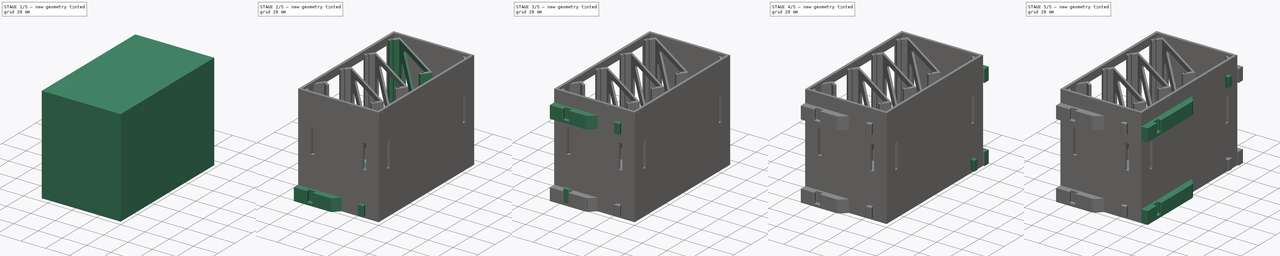
[diagram: build sequence overview — one tinted view per stage of 5, left to right]
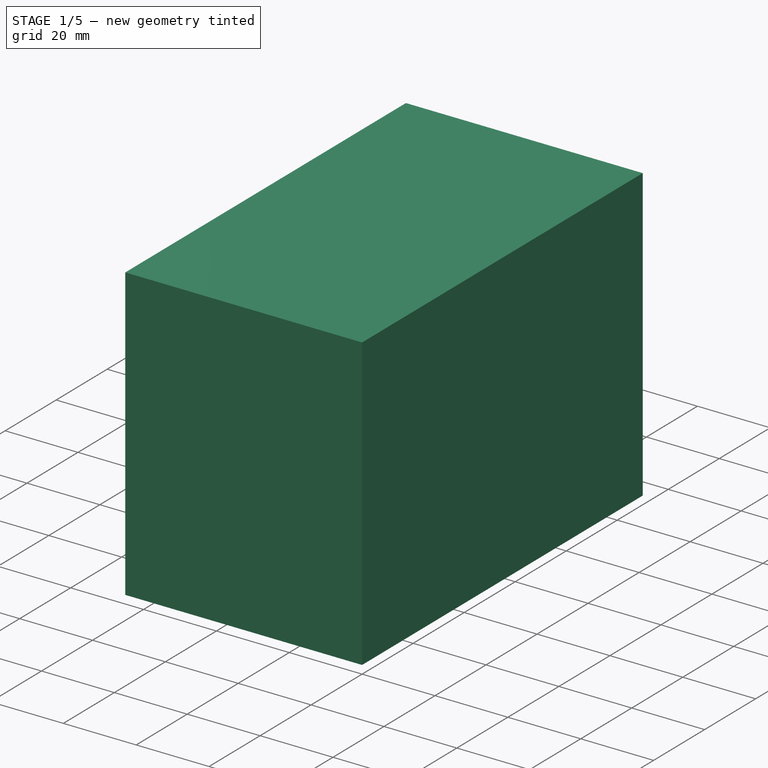
[diagram: stage 1 of 5 — iso view after this stage's code; geometry added in this stage tinted green]
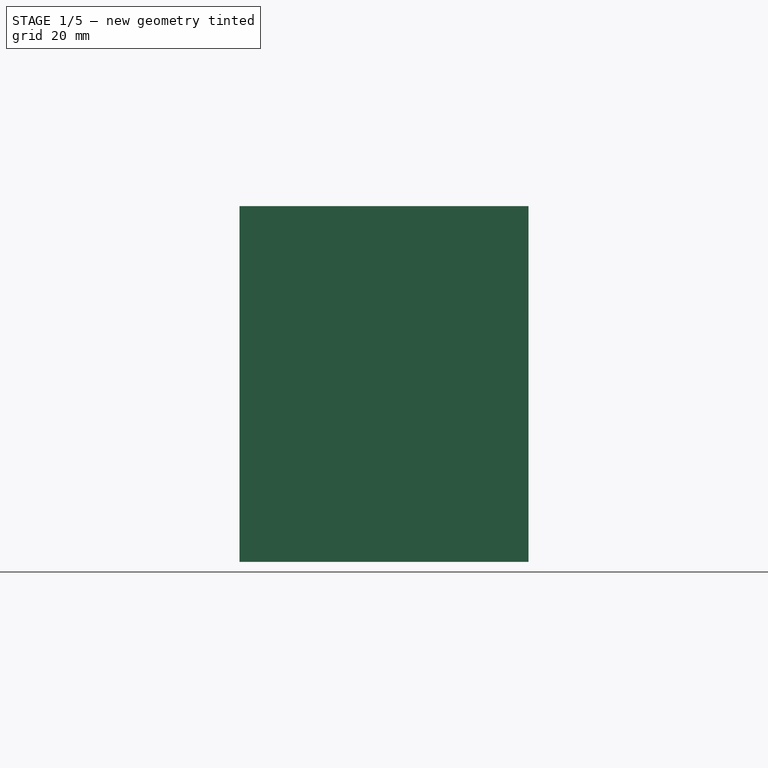
[diagram: stage 1 of 5 — front view after this stage's code; geometry added in this stage tinted green]
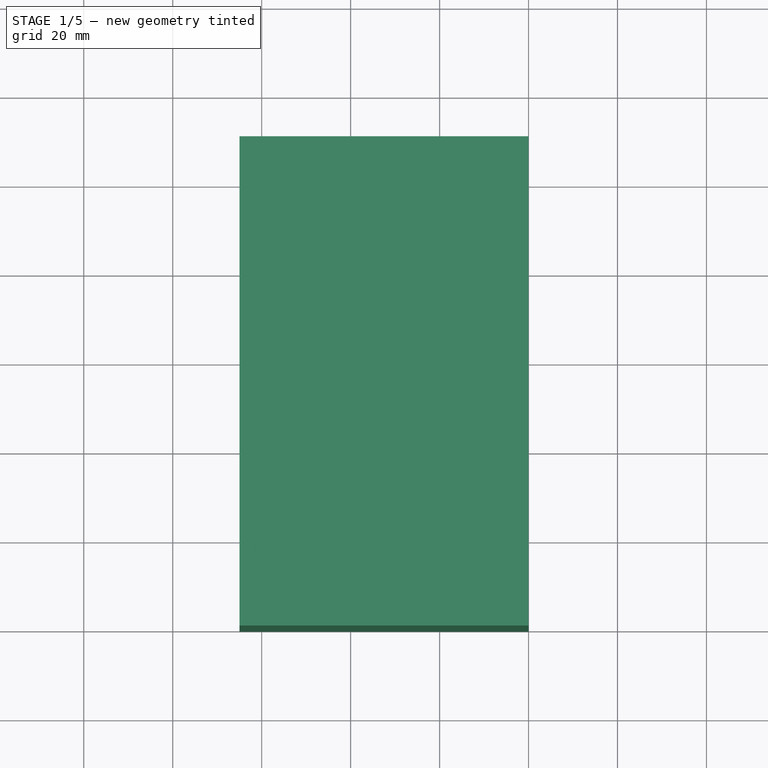
[diagram: stage 1 of 5 — top view after this stage's code; geometry added in this stage tinted green]
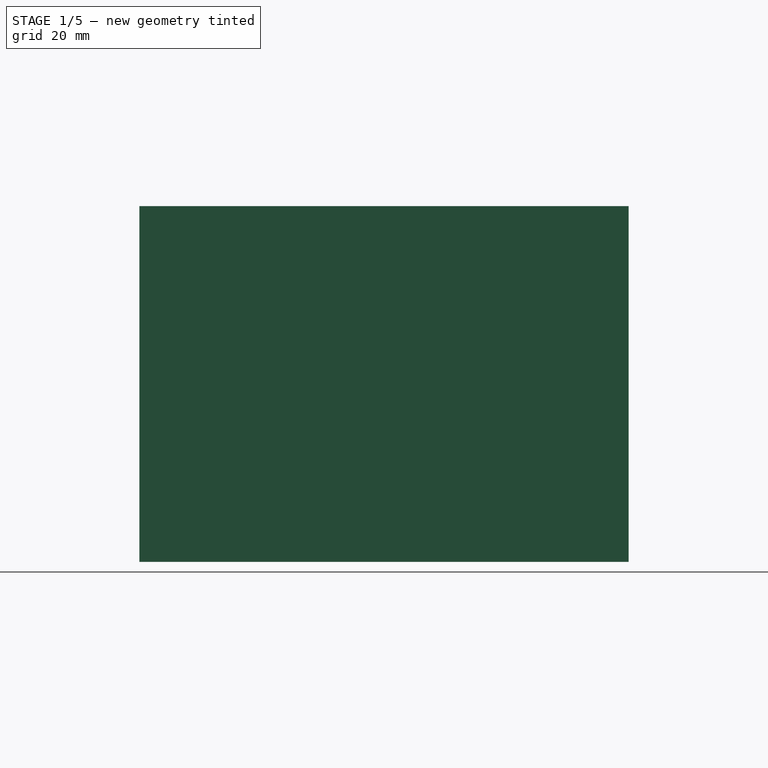
[diagram: stage 1 of 5 — right view after this stage's code; geometry added in this stage tinted green]
FCSTD DOCUMENT  (FreeCAD 0.15R4671 (Git))
Label: SupportV2
License: All rights reserved
LicenseURL: http://en.wikipedia.org/wiki/All_rights_reserved
objects: Sketcher::SketchObject×16, PartDesign::Pad×16, PartDesign::Fillet×10, Part::MultiFuse×8, Part::FeaturePython×5, Part::Cut×5
note: 76 computed .brp shape members not serialized (recipe doc carries the construction recipe); baked Part::Feature solids carry a one-line shape summary decoded from their .brp

FEATURE [PartDesign::Fillet] Fillet  label="4 Relay"
  Placement = pos=(-58.4516,107.97,0) rot=(0,0,-1;0.588176rad)
  Radius = 2
FEATURE [Part::FeaturePython] Clone  label="Clone of 4 Relay"  # Draft clone (typed FeaturePython)
  Objects = -> [Fillet]
  Placement = pos=(-58.4516,79.9695,0) rot=(0,0,-1;0.588176rad)
  Scale = (1,1,1)
FEATURE [Part::FeaturePython] Clone001  label="Clone of 4 Relay001"  # Draft clone (typed FeaturePython)
  Objects = -> [Fillet]
  Placement = pos=(-58.4516,51.9695,0) rot=(0,0,-1;0.588176rad)
  Scale = (1,1,1)
FEATURE [Sketcher::SketchObject] Sketch003
  sketch-geometry (16):
    g0: LineSegment StartX=-65 StartY=0 StartZ=0 EndX=-65 EndY=15.68 EndZ=0
    g1: LineSegment StartX=-65 StartY=15.68 StartZ=0 EndX=-59.4516 EndY=23.9995 EndZ=0
    g2: LineSegment StartX=-59.4516 StartY=23.9995 StartZ=0 EndX=-54.4598 EndY=20.6705 EndZ=0
    g3: LineSegment StartX=-54.4598 StartY=20.6705 StartZ=0 EndX=-55.5695 EndY=19.0066 EndZ=0
    g4: LineSegment StartX=-55.5695 StartY=19.0066 StartZ=0 EndX=-58.8973 EndY=21.2259 EndZ=0
    g5: LineSegment StartX=-58.8973 StartY=21.2259 StartZ=0 EndX=-63 EndY=15.0743 EndZ=0
    g6: LineSegment StartX=-63 StartY=15.0743 StartZ=0 EndX=-63 EndY=2 EndZ=0
    g7: LineSegment StartX=-63 StartY=2 StartZ=0 EndX=-2 EndY=2 EndZ=0
    g8: LineSegment StartX=-2 StartY=2 StartZ=0 EndX=-2 EndY=108 EndZ=0
    g9: LineSegment StartX=-2 StartY=108 StartZ=0 EndX=-63 EndY=108 EndZ=0
    g10: LineSegment StartX=-63 StartY=108 StartZ=0 EndX=-63 EndY=101.643 EndZ=0
    g11: LineSegment StartX=-63 StartY=101.643 StartZ=0 EndX=-65 EndY=101.68 EndZ=0
    g12: LineSegment StartX=-65 StartY=101.68 StartZ=0 EndX=-65 EndY=110 EndZ=0
    g13: LineSegment StartX=-65 StartY=110 StartZ=0 EndX=0 EndY=110 EndZ=0
    g14: LineSegment StartX=0 StartY=110 StartZ=0 EndX=0 EndY=0 EndZ=0
    g15: LineSegment StartX=0 StartY=0 StartZ=0 EndX=-65 EndY=0 EndZ=0
  constraints (47):
    c: PointOnObject(g0,g-1)
    c: Vertical(g0)
    c: Coincident(g0,g1)
    c: Coincident(g1,g2)
    c: Coincident(g2,g3)
    c: Coincident(g3,g4)
    c: Coincident(g4,g5)
    c: Coincident(g5,g6)
    c: Coincident(g6,g7)
    c: Horizontal(g7)
    c: Coincident(g7,g8)
    c: Vertical(g8)
    c: Coincident(g8,g9)
    c: Horizontal(g9)
    c: Coincident(g9,g10)
    c: Coincident(g10,g11)
    c: Coincident(g11,g12)
    c: Vertical(g12)
    c: Coincident(g12,g13)
    c: PointOnObject(g13,g-2)
    c: Horizontal(g13)
    c: Coincident(g13,g14)
    c: Vertical(g14)
    c: Coincident(g14,g15)
    c: Coincident(g15,g0)
    c: Horizontal(g15)
    c: Vertical(g6)
    c: DistanceX(g6,g0) = -2
    c: DistanceY(g0,g6) = 2
    c: DistanceX(g15) = -65
    c: DistanceX(g-1,g7) = -2
    c: Distance(g5,g1) = 2
    c: Parallel(g5,g1)
    c: Parallel(g4,g2)
    c: Parallel(g3,g1)
    c: Distance(g4,g2) = 2
    c: Perpendicular(g4,g5)
    c: Angle(g6,g5) = 2.55342
    c: Distance(g1) = 10
    c: Distance(g2) = 6
    c: DistanceY(g9,g12) = 2
    c: DistanceX(g9,g12) = -2
    c: DistanceX(g13) = 65
    c: DistanceY(g14) = -110
    c: Parallel(g10,g12)
    c: Distance(g12) = 8.32
    c: Distance(g0) = 15.68
FEATURE [PartDesign::Pad] Pad003
  Length = 80
  Length2 = 100
  Sketch = -> Sketch003
  Type = 0
FEATURE [Sketcher::SketchObject] Sketch004
  sketch-geometry (4):
    g0: LineSegment StartX=-65 StartY=110 StartZ=0 EndX=-63 EndY=110 EndZ=0
    g1: LineSegment StartX=-63 StartY=110 StartZ=0 EndX=-63 EndY=0 EndZ=0
    g2: LineSegment StartX=-63 StartY=0 StartZ=0 EndX=-65 EndY=0 EndZ=0
    g3: LineSegment StartX=-65 StartY=0 StartZ=0 EndX=-65 EndY=110 EndZ=0
  constraints (12):
    c: Coincident(g0,g1)
    c: Coincident(g1,g2)
    c: Coincident(g2,g3)
    c: Coincident(g3,g0)
    c: Horizontal(g0)
    c: Horizontal(g2)
    c: Vertical(g1)
    c: Vertical(g3)
    c: PointOnObject(g2,g-1)
    c: DistanceX(g0) = 2
    c: DistanceX(g-1,g2) = -65
    c: DistanceY(g3) = 110
FEATURE [PartDesign::Pad] Pad004
  Length = 6
  Length2 = 100
  Sketch = -> Sketch004
  Type = 0
FEATURE [Sketcher::SketchObject] Sketch005
  Placement = pos=(0,0,74) rot=(0,0,1;0rad)
  sketch-geometry (4):
    g0: LineSegment StartX=-65 StartY=0 StartZ=0 EndX=-63 EndY=0 EndZ=0
    g1: LineSegment StartX=-63 StartY=0 StartZ=0 EndX=-63 EndY=110 EndZ=0
    g2: LineSegment StartX=-63 StartY=110 StartZ=0 EndX=-65 EndY=110 EndZ=0
    g3: LineSegment StartX=-65 StartY=110 StartZ=0 EndX=-65 EndY=0 EndZ=0
  constraints (12):
    c: Coincident(g0,g1)
    c: Coincident(g1,g2)
    c: Coincident(g2,g3)
    c: Coincident(g3,g0)
    c: Horizontal(g0)
    c: Horizontal(g2)
    c: Vertical(g1)
    c: Vertical(g3)
    c: PointOnObject(g0,g-1)
    c: DistanceX(g0) = 2
    c: DistanceX(g-1,g0) = -65
    c: DistanceY(g3) = -110
FEATURE [PartDesign::Pad] Pad005
  Length = 6
  Length2 = 100
  Placement = pos=(0,0,74) rot=(0,0,1;0rad)
  Sketch = -> Sketch005
  Type = 0
FEATURE [Sketcher::SketchObject] Sketch006
  sketch-geometry (9):
    g0: LineSegment StartX=0 StartY=0 StartZ=0 EndX=-10 EndY=0 EndZ=0
    g1: LineSegment StartX=-10 StartY=0 StartZ=0 EndX=0 EndY=10 EndZ=0
    g2: LineSegment StartX=0 StartY=10 StartZ=0 EndX=0 EndY=0 EndZ=0
    g3: LineSegment StartX=-55 StartY=0 StartZ=0 EndX=-65 EndY=0 EndZ=0
    g4: LineSegment StartX=-65 StartY=0 StartZ=0 EndX=-65 EndY=10 EndZ=0
    g5: LineSegment StartX=-65 StartY=10 StartZ=0 EndX=-55 EndY=0 EndZ=0
    g6: LineSegment StartX=0 StartY=100 StartZ=0 EndX=0 EndY=110 EndZ=0
    g7: LineSegment StartX=0 StartY=110 StartZ=0 EndX=-10 EndY=110 EndZ=0
    g8: LineSegment StartX=-10 StartY=110 StartZ=0 EndX=0 EndY=100 EndZ=0
  constraints (26):
    c: Coincident(g-1,g0)
    c: PointOnObject(g0,g-1)
    c: Coincident(g0,g1)
    c: Coincident(g1,g2)
    c: Coincident(g2,g0)
    c: Vertical(g2)
    c: Angle(g0,g1) = 0.785398
    c: Distance(g0) = 10
    c: PointOnObject(g3,g-1)
    c: Horizontal(g3)
    c: Coincident(g3,g4)
    c: Vertical(g4)
    c: Coincident(g4,g5)
    c: Coincident(g5,g3)
    c: Angle(g5,g3) = 0.785398
    c: Equal(g0,g3)
    c: DistanceX(g-1,g3) = -65
    c: Vertical(g6)
    c: Coincident(g6,g7)
    c: Horizontal(g7)
    c: Coincident(g7,g8)
    c: Coincident(g8,g6)
    c: Equal(g7,g6)
    c: Equal(g6,g0)
    c: DistanceX(g-1,g6) = 0
    c: DistanceY(g-1,g6) = 110
FEATURE [PartDesign::Pad] Pad006  label="Suportes"
  Length = 78
  Length2 = 100
  Sketch = -> Sketch006
  Type = 0
FEATURE [Sketcher::SketchObject] Sketch007
  Placement = pos=(0,0,78) rot=(0,0,1;0rad)
  sketch-geometry (4):
    g0: LineSegment StartX=-63 StartY=2 StartZ=0 EndX=-2 EndY=2 EndZ=0
    g1: LineSegment StartX=-2 StartY=2 StartZ=0 EndX=-2 EndY=108 EndZ=0
    g2: LineSegment StartX=-2 StartY=108 StartZ=0 EndX=-63 EndY=108 EndZ=0
    g3: LineSegment StartX=-63 StartY=108 StartZ=0 EndX=-63 EndY=2 EndZ=0
  constraints (12):
    c: Coincident(g0,g1)
    c: Coincident(g1,g2)
    c: Coincident(g2,g3)
    c: Coincident(g3,g0)
    c: Horizontal(g0)
    c: Horizontal(g2)
    c: Vertical(g1)
    c: Vertical(g3)
    c: DistanceX(g0) = 61
    c: DistanceY(g3) = -106
    c: DistanceY(g-1,g0) = 2
    c: DistanceX(g-1,g0) = -2
FEATURE [PartDesign::Pad] Pad007
  Length = 2
  Length2 = 100
  Placement = pos=(0,0,78) rot=(0,0,1;0rad)
  Sketch = -> Sketch007
  Type = 0
FEATURE [Sketcher::SketchObject] Sketch017
  Placement = pos=(0,0,35) rot=(0,0,1;0rad)
  sketch-geometry (24):
    g0: LineSegment StartX=-13 StartY=2 StartZ=0 EndX=-10 EndY=2 EndZ=0
    g1: LineSegment StartX=-10 StartY=2 StartZ=0 EndX=-10 EndY=0 EndZ=0
    g2: LineSegment StartX=-10 StartY=0 StartZ=0 EndX=-13 EndY=0 EndZ=0
    g3: LineSegment StartX=-13 StartY=0 StartZ=0 EndX=-13 EndY=2 EndZ=0
    g4: LineSegment StartX=-55 StartY=2 StartZ=0 EndX=-52 EndY=2 EndZ=0
    g5: LineSegment StartX=-52 StartY=2 StartZ=0 EndX=-52 EndY=0 EndZ=0
    g6: LineSegment StartX=-52 StartY=0 StartZ=0 EndX=-55 EndY=0 EndZ=0
    g7: LineSegment StartX=-55 StartY=0 StartZ=0 EndX=-55 EndY=2 EndZ=0
    g8: LineSegment StartX=-2 StartY=13 StartZ=0 EndX=0 EndY=13 EndZ=0
    g9: LineSegment StartX=0 StartY=13 StartZ=0 EndX=0 EndY=10 EndZ=0
    g10: LineSegment StartX=0 StartY=10 StartZ=0 EndX=-2 EndY=10 EndZ=0
    g11: LineSegment StartX=-2 StartY=10 StartZ=0 EndX=-2 EndY=13 EndZ=0
    g12: LineSegment StartX=-2 StartY=100 StartZ=0 EndX=0 EndY=100 EndZ=0
    g13: LineSegment StartX=0 StartY=100 StartZ=0 EndX=0 EndY=97 EndZ=0
    g14: LineSegment StartX=0 StartY=97 StartZ=0 EndX=-2 EndY=97 EndZ=0
    g15: LineSegment StartX=-2 StartY=97 StartZ=0 EndX=-2 EndY=100 EndZ=0
    g16: LineSegment StartX=-13 StartY=110 StartZ=0 EndX=-10 EndY=110 EndZ=0
    g17: LineSegment StartX=-10 StartY=110 StartZ=0 EndX=-10 EndY=108 EndZ=0
    g18: LineSegment StartX=-10 StartY=108 StartZ=0 EndX=-13 EndY=108 EndZ=0
    g19: LineSegment StartX=-13 StartY=108 StartZ=0 EndX=-13 EndY=110 EndZ=0
    g20: LineSegment StartX=-55 StartY=110 StartZ=0 EndX=-52 EndY=110 EndZ=0
    g21: LineSegment StartX=-52 StartY=110 StartZ=0 EndX=-52 EndY=108 EndZ=0
    g22: LineSegment StartX=-52 StartY=108 StartZ=0 EndX=-55 EndY=108 EndZ=0
    g23: LineSegment StartX=-55 StartY=108 StartZ=0 EndX=-55 EndY=110 EndZ=0
  constraints (72):
    c: Coincident(g0,g1)
    c: Coincident(g1,g2)
    c: Coincident(g2,g3)
    c: Coincident(g3,g0)
    c: Horizontal(g0)
    c: Horizontal(g2)
    c: Vertical(g1)
    c: Vertical(g3)
    c: Coincident(g4,g5)
    c: Coincident(g5,g6)
    c: Coincident(g6,g7)
    c: Coincident(g7,g4)
    c: Horizontal(g4)
    c: Horizontal(g6)
    c: Vertical(g5)
    c: Vertical(g7)
    c: Coincident(g8,g9)
    c: Coincident(g9,g10)
    c: Coincident(g10,g11)
    c: Coincident(g11,g8)
    c: Horizontal(g8)
    c: Horizontal(g10)
    c: Vertical(g9)
    c: Vertical(g11)
    c: Coincident(g12,g13)
    c: Coincident(g13,g14)
    c: Coincident(g14,g15)
    c: Coincident(g15,g12)
    c: Horizontal(g12)
    c: Horizontal(g14)
    c: Vertical(g13)
    c: Vertical(g15)
    c: Coincident(g16,g17)
    c: Coincident(g17,g18)
    c: Coincident(g18,g19)
    c: Coincident(g19,g16)
    c: Horizontal(g16)
    c: Horizontal(g18)
    c: Vertical(g17)
    c: Vertical(g19)
    c: Coincident(g20,g21)
    c: Coincident(g21,g22)
    c: Coincident(g22,g23)
    c: Coincident(g23,g20)
    c: Horizontal(g20)
    c: Horizontal(g22)
    c: Vertical(g21)
    c: Vertical(g23)
    c: Equal(g22,g18)
    c: Equal(g18,g15)
    c: Equal(g15,g11)
    c: Equal(g11,g0)
    c: Equal(g0,g4)
    c: DistanceX(g4) = 3
    c: PointOnObject(g5,g-1)
    c: PointOnObject(g1,g-1)
    c: Equal(g5,g1)
    c: Equal(g1,g8)
    c: Equal(g8,g12)
    c: Equal(g12,g17)
    c: Equal(g17,g21)
    c: Distance(g23) = 2
    c: DistanceX(g-1,g6) = -55
    c: DistanceX(g-1,g1) = -10
    c: PointOnObject(g9,g-2)
    c: DistanceY(g-1,g9) = 10
    c: PointOnObject(g13,g-2)
    c: DistanceY(g-1,g12) = 100
    c: DistanceY(g-1,g16) = 110
    c: DistanceY(g16,g20) = 0
    c: DistanceX(g-1,g16) = -10
    c: DistanceX(g-1,g20) = -55
FEATURE [PartDesign::Pad] Pad017  label="Buracos"
  Length = 20
  Length2 = 100
  Placement = pos=(0,0,35) rot=(0,0,1;0rad)
  Sketch = -> Sketch017
  Type = 0
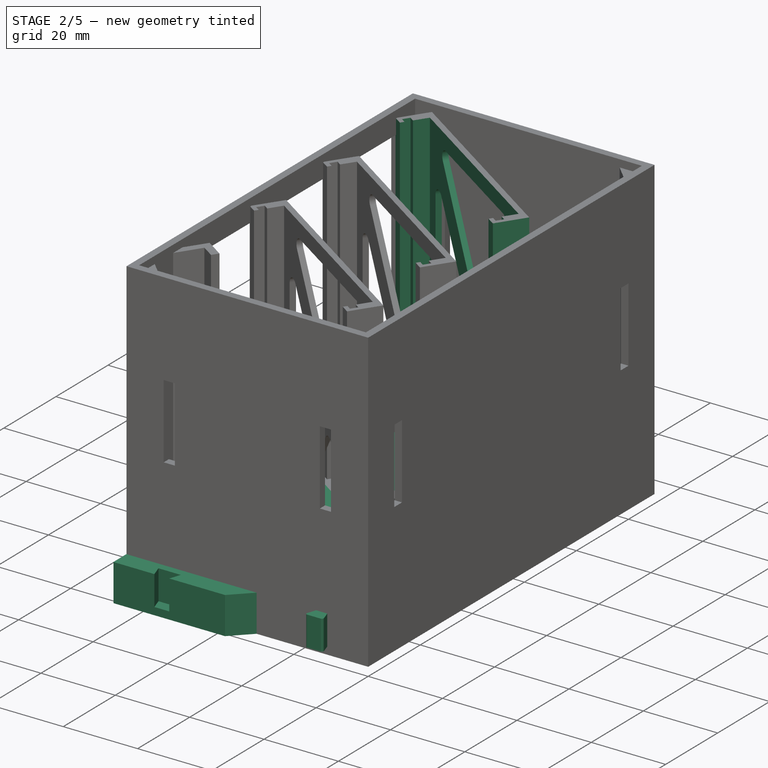
[diagram: stage 2 of 5 — iso view after this stage's code; geometry added in this stage tinted green]
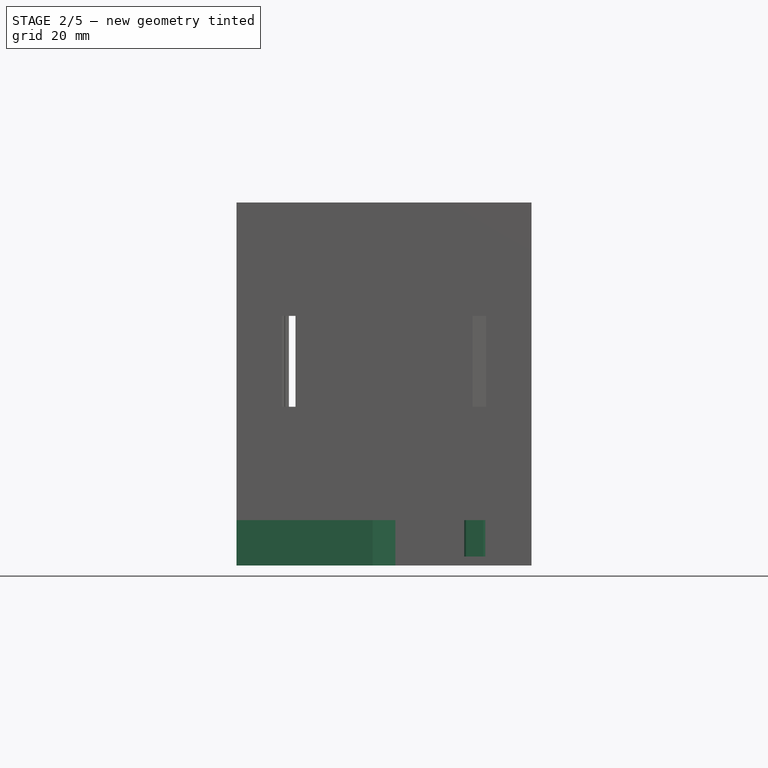
[diagram: stage 2 of 5 — front view after this stage's code; geometry added in this stage tinted green]
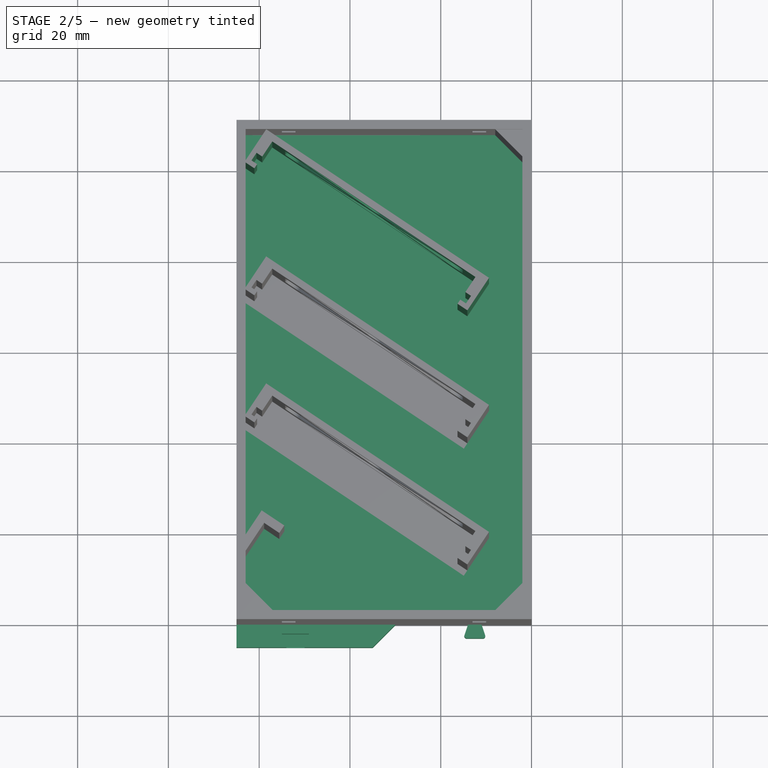
[diagram: stage 2 of 5 — top view after this stage's code; geometry added in this stage tinted green]
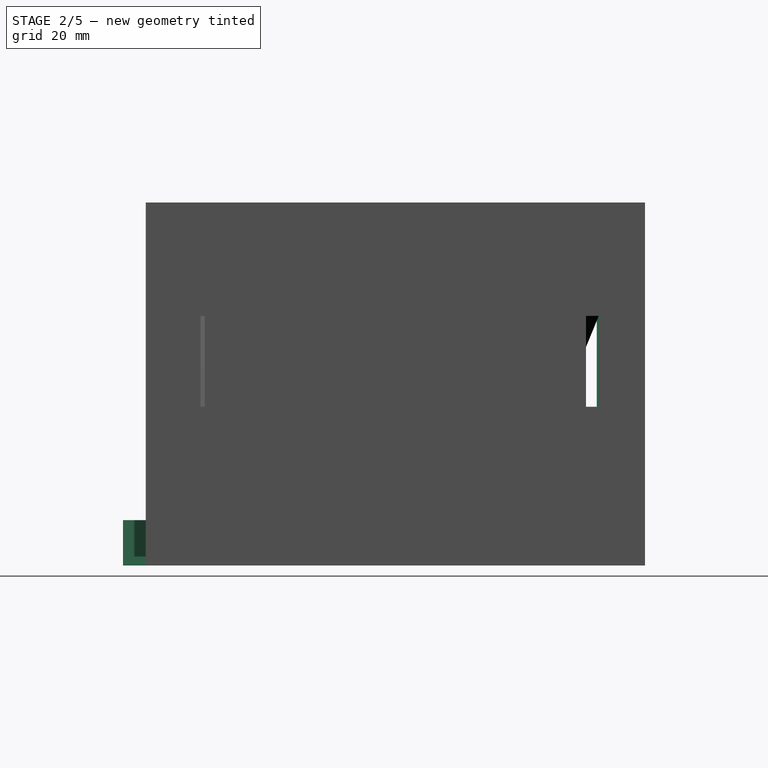
[diagram: stage 2 of 5 — right view after this stage's code; geometry added in this stage tinted green]
FEATURE [Sketcher::SketchObject] Sketch
  sketch-geometry (4):
    g0: LineSegment StartX=0 StartY=0 StartZ=0 EndX=-65 EndY=0 EndZ=0
    g1: LineSegment StartX=-65 StartY=0 StartZ=0 EndX=-65 EndY=110 EndZ=0
    g2: LineSegment StartX=-65 StartY=110 StartZ=0 EndX=0 EndY=110 EndZ=0
    g3: LineSegment StartX=0 StartY=110 StartZ=0 EndX=0 EndY=0 EndZ=0
  constraints (11):
    c: Coincident(g0,g1)
    c: Coincident(g1,g2)
    c: Coincident(g2,g3)
    c: Coincident(g3,g0)
    c: Horizontal(g0)
    c: Horizontal(g2)
    c: Vertical(g1)
    c: Vertical(g3)
    c: Coincident(g0,g-1)
    c: Distance(g2) = 65
    c: Distance(g1) = 110
FEATURE [PartDesign::Pad] Pad  label="Base"
  Length = 2
  Length2 = 100
  Sketch = -> Sketch
  Type = 0
FEATURE [Part::MultiFuse] Fusion
  Shapes = -> [Pad006,Pad005,Pad,Clone,Fillet,Clone001,Pad003,Pad004]
FEATURE [Part::Cut] Cut
  Base = -> Fusion
  Tool = -> Pad007
FEATURE [Sketcher::SketchObject] Sketch014
  sketch-geometry (4):
    g0: LineSegment StartX=-65 StartY=0 StartZ=0 EndX=-30 EndY=0 EndZ=0
    g1: LineSegment StartX=-30 StartY=0 StartZ=0 EndX=-35 EndY=-5 EndZ=0
    g2: LineSegment StartX=-35 StartY=-5 StartZ=0 EndX=-65 EndY=-5 EndZ=0
    g3: LineSegment StartX=-65 StartY=-5 StartZ=0 EndX=-65 EndY=0 EndZ=0
  constraints (12):
    c: PointOnObject(g0,g-1)
    c: Horizontal(g0)
    c: Coincident(g0,g1)
    c: Coincident(g1,g2)
    c: Horizontal(g2)
    c: Coincident(g2,g3)
    c: Coincident(g3,g0)
    c: Vertical(g3)
    c: Distance(g3) = 5
    c: Distance(g0) = 35
    c: Angle(g0,g1) = 0.785398
    c: DistanceX(g-1,g0) = -65
FEATURE [Sketcher::SketchObject] Sketch015
  Placement = pos=(0,0,2) rot=(0,0,1;0rad)
  sketch-geometry (4):
    g0: LineSegment StartX=-54 StartY=-5 StartZ=0 EndX=-55 EndY=-2 EndZ=0
    g1: LineSegment StartX=-55 StartY=-2 StartZ=0 EndX=-49 EndY=-2 EndZ=0
    g2: LineSegment StartX=-49 StartY=-2 StartZ=0 EndX=-50 EndY=-5 EndZ=0
    g3: LineSegment StartX=-50 StartY=-5 StartZ=0 EndX=-54 EndY=-5 EndZ=0
  constraints (12):
    c: Coincident(g0,g1)
    c: Horizontal(g1)
    c: Coincident(g1,g2)
    c: Coincident(g2,g3)
    c: Coincident(g3,g0)
    c: Horizontal(g3)
    c: Distance(g1) = 6
    c: Distance(g3) = 4
    c: DistanceX(g0,g0) = 1
    c: DistanceY(g-1,g0) = -2
    c: DistanceY(g0,g0) = 3
    c: DistanceX(g-1,g0) = -55
FEATURE [Sketcher::SketchObject] Sketch016
  Placement = pos=(0,0,2) rot=(0,0,1;0rad)
  sketch-geometry (4):
    g0: LineSegment StartX=-11 StartY=0 StartZ=0 EndX=-10 EndY=-3 EndZ=0
    g1: LineSegment StartX=-10 StartY=-3 StartZ=0 EndX=-15 EndY=-3 EndZ=0
    g2: LineSegment StartX=-15 StartY=-3 StartZ=0 EndX=-14 EndY=0 EndZ=0
    g3: LineSegment StartX=-14 StartY=0 StartZ=0 EndX=-11 EndY=0 EndZ=0
  constraints (12):
    c: PointOnObject(g0,g-1)
    c: Coincident(g0,g1)
    c: Horizontal(g1)
    c: Coincident(g1,g2)
    c: PointOnObject(g2,g-1)
    c: Coincident(g2,g3)
    c: Coincident(g3,g0)
    c: DistanceX(g1) = -5
    c: DistanceX(g3) = 3
    c: DistanceY(g0,g0) = -3
    c: DistanceX(g0,g0) = 1
    c: DistanceX(g-1,g0) = -10
FEATURE [PartDesign::Pad] Pad014
  Length = 10
  Length2 = 100
  Sketch = -> Sketch014
  Type = 0
FEATURE [PartDesign::Pad] Pad015
  Length = 10
  Length2 = 100
  Placement = pos=(0,0,2) rot=(0,0,1;0rad)
  Sketch = -> Sketch015
  Type = 0
FEATURE [PartDesign::Pad] Pad016
  Length = 8
  Length2 = 100
  Placement = pos=(0,0,2) rot=(0,0,1;0rad)
  Sketch = -> Sketch016
  Type = 0
FEATURE [Part::Cut] Cut003
  Base = -> Pad014
  Tool = -> Pad015
FEATURE [PartDesign::Fillet] Fillet009
  Base = -> Pad016 [Edge2,Edge5]
  Placement = pos=(0,0,2) rot=(0,0,1;0rad)
  Radius = 0.5
FEATURE [Part::Cut] Cut004
  Base = -> Cut
  Tool = -> Pad017
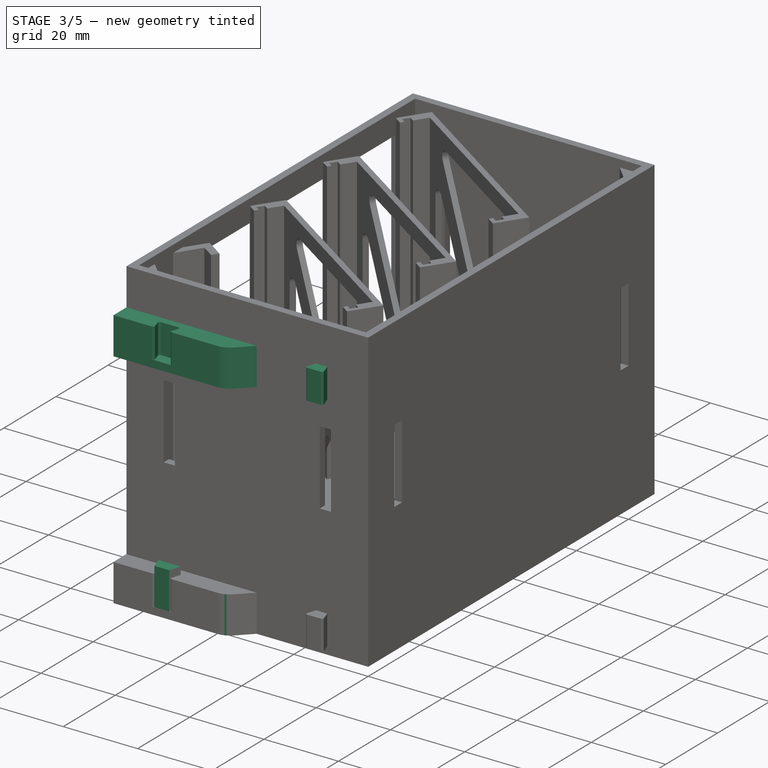
[diagram: stage 3 of 5 — iso view after this stage's code; geometry added in this stage tinted green]
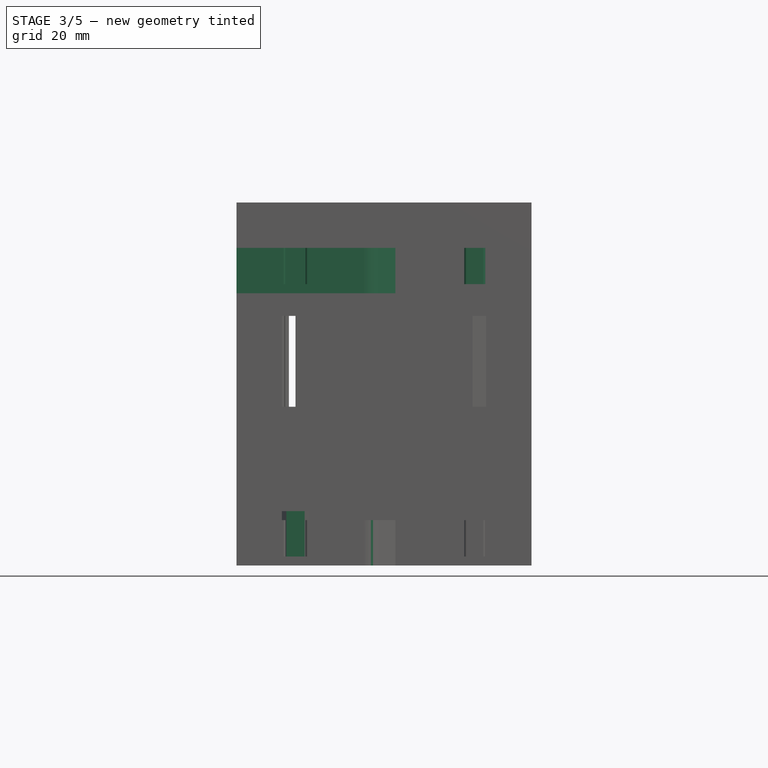
[diagram: stage 3 of 5 — front view after this stage's code; geometry added in this stage tinted green]
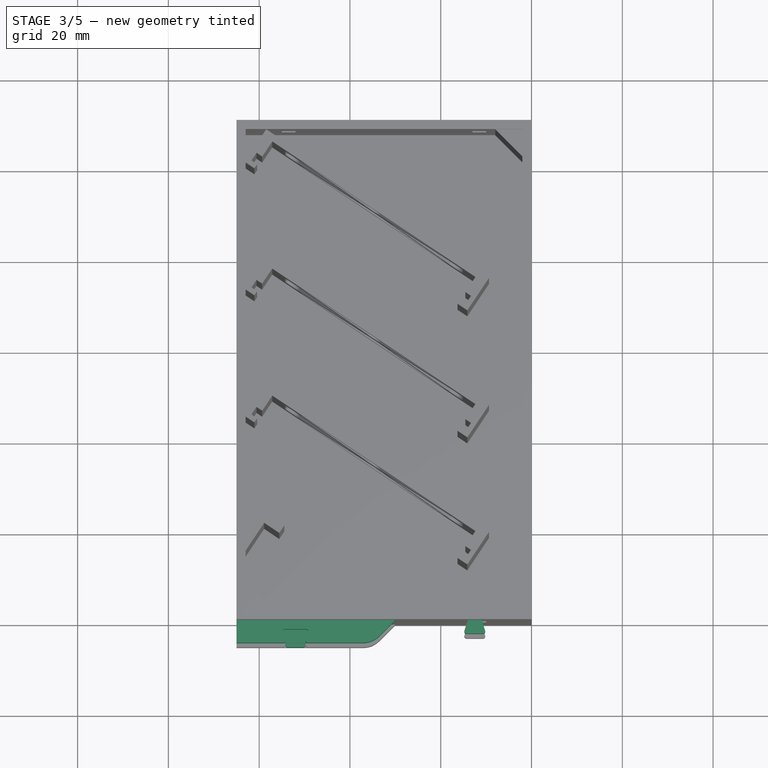
[diagram: stage 3 of 5 — top view after this stage's code; geometry added in this stage tinted green]
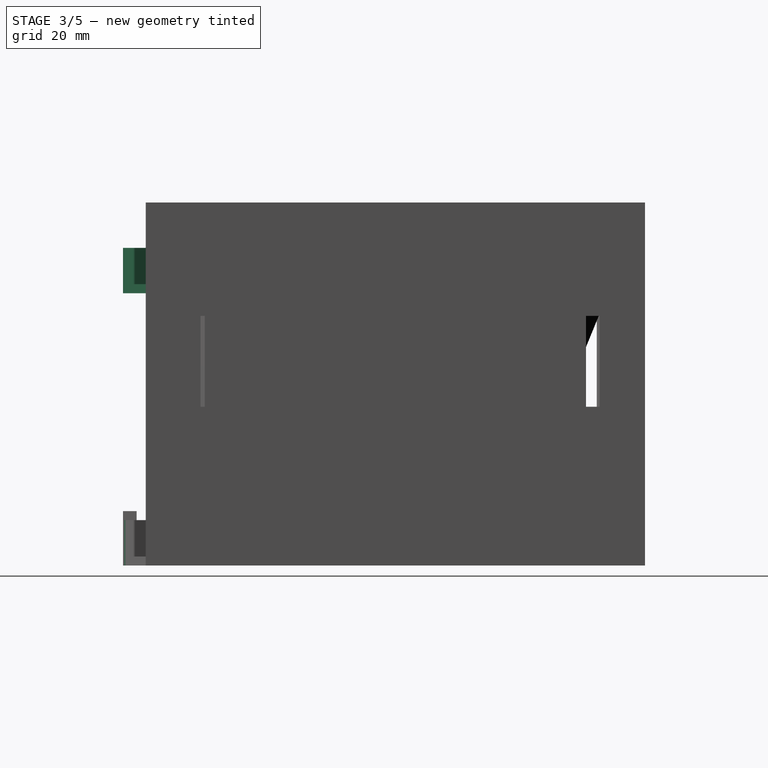
[diagram: stage 3 of 5 — right view after this stage's code; geometry added in this stage tinted green]
FEATURE [PartDesign::Pad] Pad012
  Length = 10
  Length2 = 100
  Placement = pos=(0,0,2) rot=(0,0,1;0rad)
  Sketch = -> Sketch012
  Type = 0
FEATURE [PartDesign::Pad] Pad013
  Length = 8
  Length2 = 100
  Placement = pos=(0,0,2) rot=(0,0,1;0rad)
  Sketch = -> Sketch013
  Type = 0
FEATURE [PartDesign::Fillet] Fillet006
  Base = -> Pad013 [Edge2,Edge5]
  Placement = pos=(0,0,2) rot=(0,0,1;0rad)
  Radius = 0.5
FEATURE [PartDesign::Fillet] Fillet007
  Base = -> Cut003 [Edge19,Edge21,Edge23,Edge17]
  Radius = 0.5
FEATURE [PartDesign::Fillet] Fillet008
  Base = -> Fillet007 [Edge18]
  Radius = 5
FEATURE [Part::MultiFuse] Fusion005
  Shapes = -> [Fillet008,Fillet009]
FEATURE [Part::FeaturePython] Clone004  label="Clone of Fusion003"  # Draft clone (typed FeaturePython)
  Objects = -> [Fusion005]
  Placement = pos=(0,0,60) rot=(0,0,1;0rad)
  Scale = (1,1,1)
FEATURE [Part::MultiFuse] Fusion006  label="Conectores Menores001"
  Shapes = -> [Clone004,Fusion005]
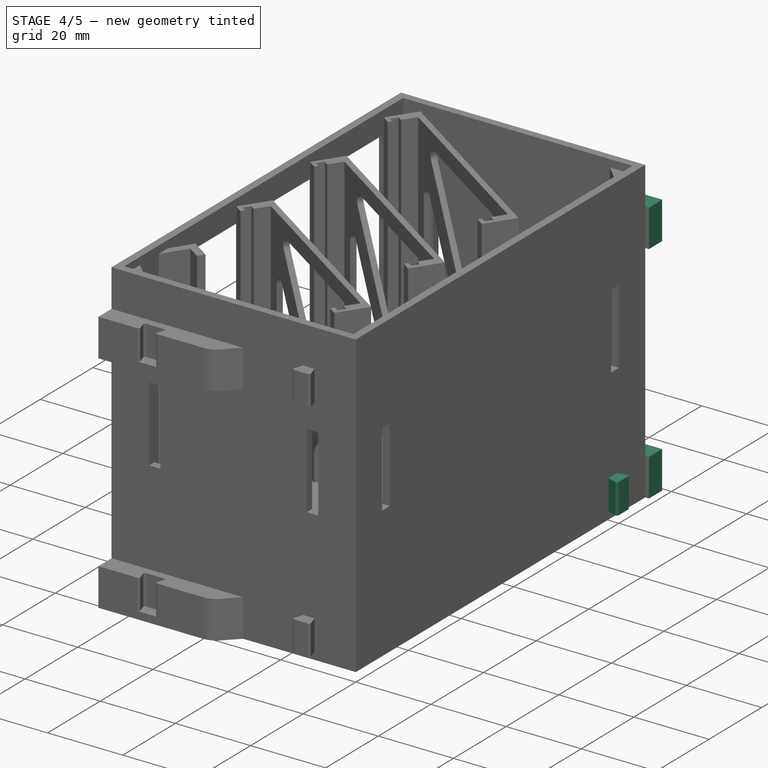
[diagram: stage 4 of 5 — iso view after this stage's code; geometry added in this stage tinted green]
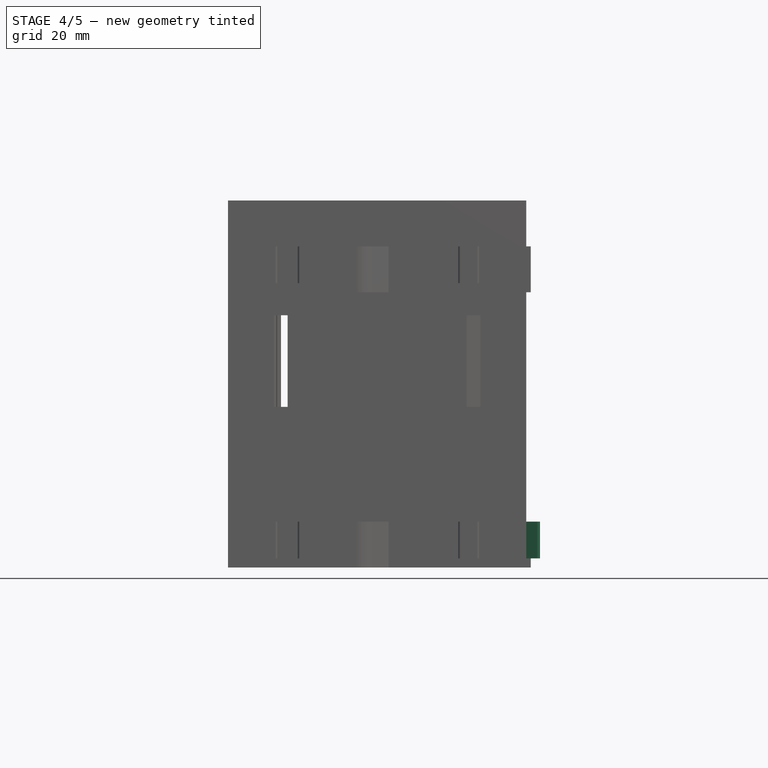
[diagram: stage 4 of 5 — front view after this stage's code; geometry added in this stage tinted green]
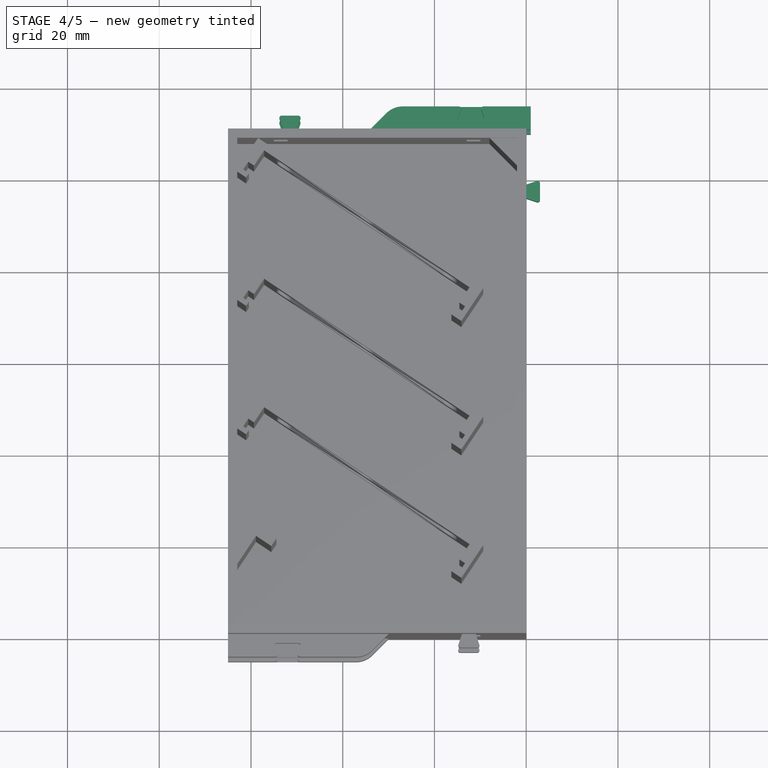
[diagram: stage 4 of 5 — top view after this stage's code; geometry added in this stage tinted green]
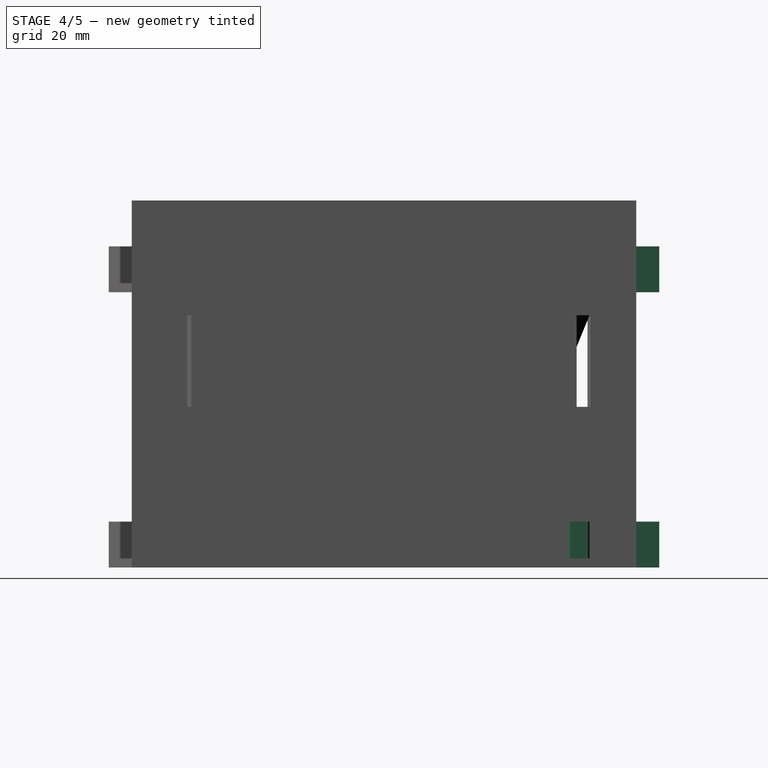
[diagram: stage 4 of 5 — right view after this stage's code; geometry added in this stage tinted green]
FEATURE [Sketcher::SketchObject] Sketch010
  Placement = pos=(0,0,2) rot=(0,0,1;0rad)
  sketch-geometry (4):
    g0: LineSegment StartX=0 StartY=99 StartZ=0 EndX=3 EndY=100 EndZ=0
    g1: LineSegment StartX=3 StartY=100 StartZ=0 EndX=3 EndY=95 EndZ=0
    g2: LineSegment StartX=3 StartY=95 StartZ=0 EndX=0 EndY=96 EndZ=0
    g3: LineSegment StartX=0 StartY=96 StartZ=0 EndX=0 EndY=99 EndZ=0
  constraints (12):
    c: PointOnObject(g0,g-2)
    c: Coincident(g0,g1)
    c: Vertical(g1)
    c: Coincident(g1,g2)
    c: PointOnObject(g2,g-2)
    c: Coincident(g2,g3)
    c: Coincident(g3,g0)
    c: DistanceY(g3) = 3
    c: DistanceY(g1) = -5
    c: DistanceY(g2,g1) = -1
    c: DistanceX(g0,g0) = 3
    c: DistanceY(g-1,g0) = 100
FEATURE [PartDesign::Pad] Pad010
  Length = 8
  Length2 = 100
  Placement = pos=(0,0,2) rot=(0,0,1;0rad)
  Sketch = -> Sketch010
  Type = 0
FEATURE [PartDesign::Fillet] Fillet003
  Base = -> Pad010 [Edge2,Edge5]
  Placement = pos=(0,0,2) rot=(0,0,1;0rad)
  Radius = 0.5
FEATURE [Sketcher::SketchObject] Sketch011
  sketch-geometry (4):
    g0: LineSegment StartX=-65 StartY=0 StartZ=0 EndX=-30 EndY=0 EndZ=0
    g1: LineSegment StartX=-30 StartY=0 StartZ=0 EndX=-35 EndY=-5 EndZ=0
    g2: LineSegment StartX=-35 StartY=-5 StartZ=0 EndX=-65 EndY=-5 EndZ=0
    g3: LineSegment StartX=-65 StartY=-5 StartZ=0 EndX=-65 EndY=0 EndZ=0
  constraints (12):
    c: PointOnObject(g0,g-1)
    c: Horizontal(g0)
    c: Coincident(g0,g1)
    c: Coincident(g1,g2)
    c: Horizontal(g2)
    c: Coincident(g2,g3)
    c: Coincident(g3,g0)
    c: Vertical(g3)
    c: Distance(g3) = 5
    c: Distance(g0) = 35
    c: Angle(g0,g1) = 0.785398
    c: DistanceX(g-1,g0) = -65
FEATURE [Sketcher::SketchObject] Sketch012
  Placement = pos=(0,0,2) rot=(0,0,1;0rad)
  sketch-geometry (4):
    g0: LineSegment StartX=-54 StartY=-5 StartZ=0 EndX=-55 EndY=-2 EndZ=0
    g1: LineSegment StartX=-55 StartY=-2 StartZ=0 EndX=-49 EndY=-2 EndZ=0
    g2: LineSegment StartX=-49 StartY=-2 StartZ=0 EndX=-50 EndY=-5 EndZ=0
    g3: LineSegment StartX=-50 StartY=-5 StartZ=0 EndX=-54 EndY=-5 EndZ=0
  constraints (12):
    c: Coincident(g0,g1)
    c: Horizontal(g1)
    c: Coincident(g1,g2)
    c: Coincident(g2,g3)
    c: Coincident(g3,g0)
    c: Horizontal(g3)
    c: Distance(g1) = 6
    c: Distance(g3) = 4
    c: DistanceX(g0,g0) = 1
    c: DistanceY(g-1,g0) = -2
    c: DistanceY(g0,g0) = 3
    c: DistanceX(g-1,g0) = -55
FEATURE [Sketcher::SketchObject] Sketch013
  Placement = pos=(0,0,2) rot=(0,0,1;0rad)
  sketch-geometry (4):
    g0: LineSegment StartX=-11 StartY=0 StartZ=0 EndX=-10 EndY=-3 EndZ=0
    g1: LineSegment StartX=-10 StartY=-3 StartZ=0 EndX=-15 EndY=-3 EndZ=0
    g2: LineSegment StartX=-15 StartY=-3 StartZ=0 EndX=-14 EndY=0 EndZ=0
    g3: LineSegment StartX=-14 StartY=0 StartZ=0 EndX=-11 EndY=0 EndZ=0
  constraints (12):
    c: PointOnObject(g0,g-1)
    c: Coincident(g0,g1)
    c: Horizontal(g1)
    c: Coincident(g1,g2)
    c: PointOnObject(g2,g-1)
    c: Coincident(g2,g3)
    c: Coincident(g3,g0)
    c: DistanceX(g1) = -5
    c: DistanceX(g3) = 3
    c: DistanceY(g0,g0) = -3
    c: DistanceX(g0,g0) = 1
    c: DistanceX(g-1,g0) = -10
FEATURE [PartDesign::Pad] Pad011
  Length = 10
  Length2 = 100
  Sketch = -> Sketch011
  Type = 0
FEATURE [Part::Cut] Cut002
  Base = -> Pad011
  Tool = -> Pad012
FEATURE [PartDesign::Fillet] Fillet004
  Base = -> Cut002 [Edge19,Edge21,Edge23,Edge17]
  Radius = 0.5
FEATURE [PartDesign::Fillet] Fillet005
  Base = -> Fillet004 [Edge18]
  Radius = 5
FEATURE [Part::MultiFuse] Fusion003
  Shapes = -> [Fillet005,Fillet006]
FEATURE [Part::FeaturePython] Clone003  label="Clone of Fusion002"  # Draft clone (typed FeaturePython)
  Objects = -> [Fusion003]
  Placement = pos=(0,0,60) rot=(0,0,1;0rad)
  Scale = (1,1,1)
FEATURE [Part::MultiFuse] Fusion004  label="Conectores Menores"
  Placement = pos=(-64,110,0) rot=(0,0,1;3.14159rad)
  Shapes = -> [Clone003,Fusion003]
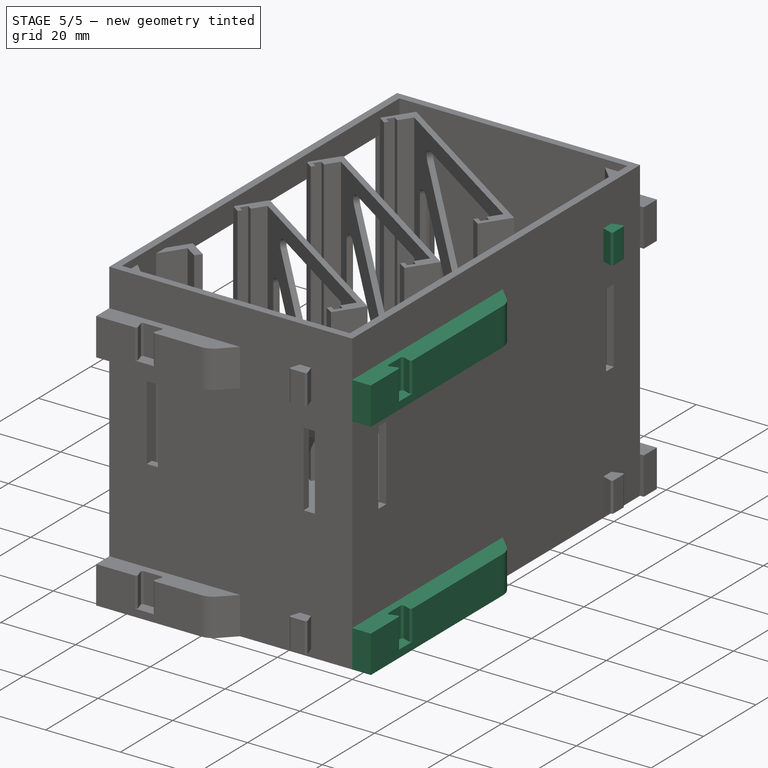
[diagram: stage 5 of 5 — iso view after this stage's code; geometry added in this stage tinted green]
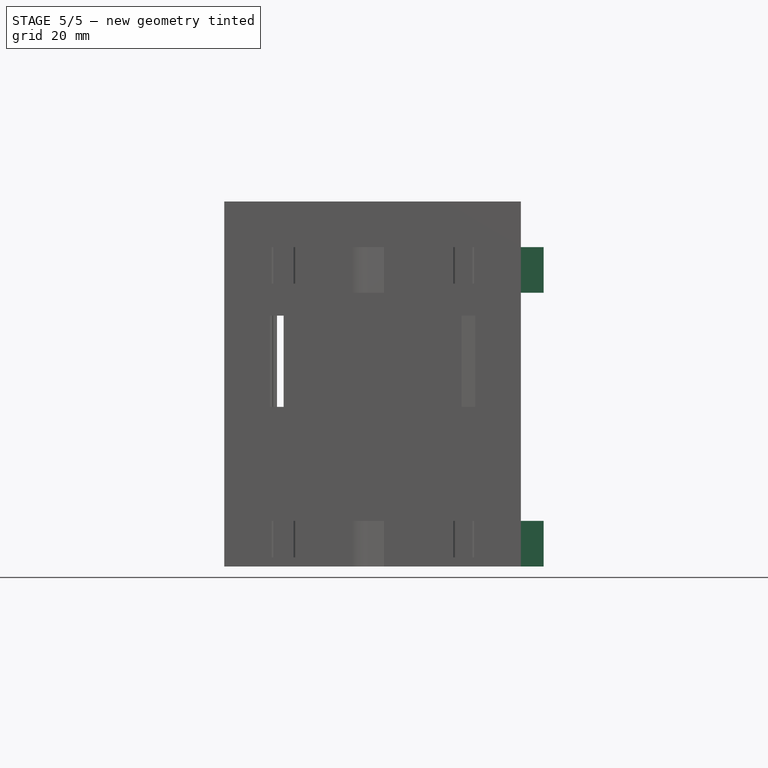
[diagram: stage 5 of 5 — front view after this stage's code; geometry added in this stage tinted green]
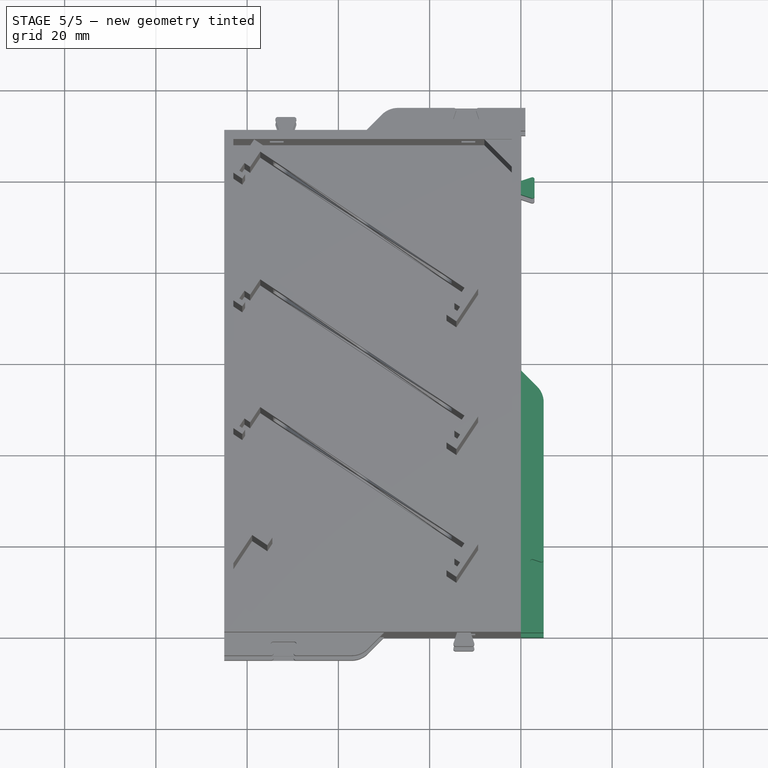
[diagram: stage 5 of 5 — top view after this stage's code; geometry added in this stage tinted green]
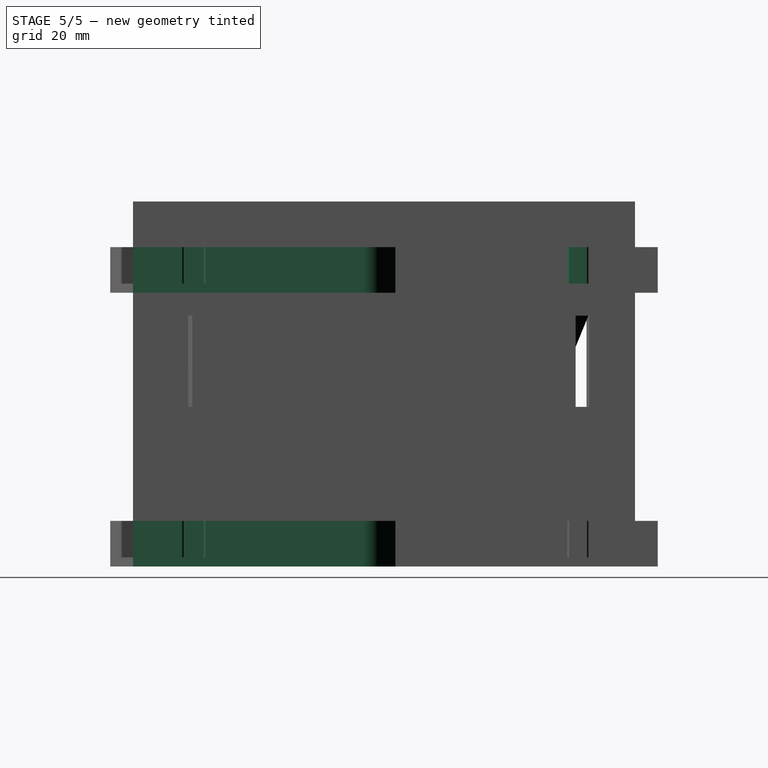
[diagram: stage 5 of 5 — right view after this stage's code; geometry added in this stage tinted green]
FEATURE [Sketcher::SketchObject] Sketch008
  sketch-geometry (4):
    g0: LineSegment StartX=0 StartY=0 StartZ=0 EndX=5 EndY=0 EndZ=0
    g1: LineSegment StartX=5 StartY=0 StartZ=0 EndX=5 EndY=52.5 EndZ=0
    g2: LineSegment StartX=5 StartY=52.5 StartZ=0 EndX=0 EndY=57.5 EndZ=0
    g3: LineSegment StartX=0 StartY=57.5 StartZ=0 EndX=0 EndY=0 EndZ=0
  constraints (11):
    c: Coincident(g-1,g0)
    c: Horizontal(g0)
    c: Coincident(g0,g1)
    c: Vertical(g1)
    c: Coincident(g1,g2)
    c: PointOnObject(g2,g-2)
    c: Coincident(g2,g3)
    c: Coincident(g3,g0)
    c: Angle(g3,g2) = 0.785398
    c: Distance(g0) = 5
    c: Distance(g3) = 57.5
FEATURE [Sketcher::SketchObject] Sketch009  label="Sulco"
  Placement = pos=(0,0,2) rot=(0,0,1;0rad)
  sketch-geometry (4):
    g0: LineSegment StartX=2 StartY=10.2821 StartZ=0 EndX=5 EndY=11.2821 EndZ=0
    g1: LineSegment StartX=5 StartY=11.2821 StartZ=0 EndX=5 EndY=15.2821 EndZ=0
    g2: LineSegment StartX=5 StartY=15.2821 StartZ=0 EndX=2 EndY=16.2821 EndZ=0
    g3: LineSegment StartX=2 StartY=16.2821 StartZ=0 EndX=2 EndY=10.2821 EndZ=0
  constraints (11):
    c: Coincident(g0,g1)
    c: Vertical(g1)
    c: Coincident(g1,g2)
    c: Coincident(g2,g3)
    c: Coincident(g3,g0)
    c: Vertical(g3)
    c: DistanceX(g-1,g0) = 5
    c: DistanceX(g0,g0) = 3
    c: DistanceY(g3) = -6
    c: DistanceY(g1) = 4
    c: DistanceY(g1,g2) = 1
FEATURE [PartDesign::Pad] Pad008
  Length = 10
  Length2 = 100
  Sketch = -> Sketch008
  Type = 0
FEATURE [PartDesign::Pad] Pad009
  Length = 10
  Length2 = 100
  Placement = pos=(0,0,2) rot=(0,0,1;0rad)
  Sketch = -> Sketch009
  Type = 0
FEATURE [Part::Cut] Cut001
  Base = -> Pad008
  Tool = -> Pad009
FEATURE [PartDesign::Fillet] Fillet001
  Base = -> Cut001 [Edge11,Edge21,Edge24,Edge13]
  Radius = 0.5
FEATURE [PartDesign::Fillet] Fillet002
  Base = -> Fillet001 [Edge3]
  Radius = 5
FEATURE [Part::MultiFuse] Fusion001
  Shapes = -> [Fillet003,Fillet002]
FEATURE [Part::FeaturePython] Clone002  label="Clone of Fusion"  # Draft clone (typed FeaturePython)
  Objects = -> [Fusion001]
  Placement = pos=(0,0,60) rot=(0,0,1;0rad)
  Scale = (1,1,1)
FEATURE [Part::MultiFuse] Fusion002  label="Conectores Maiores"
  Shapes = -> [Clone002,Fusion001]
FEATURE [Part::MultiFuse] Fusion007
  Shapes = -> [Cut004,Fusion006,Fusion004,Fusion002]
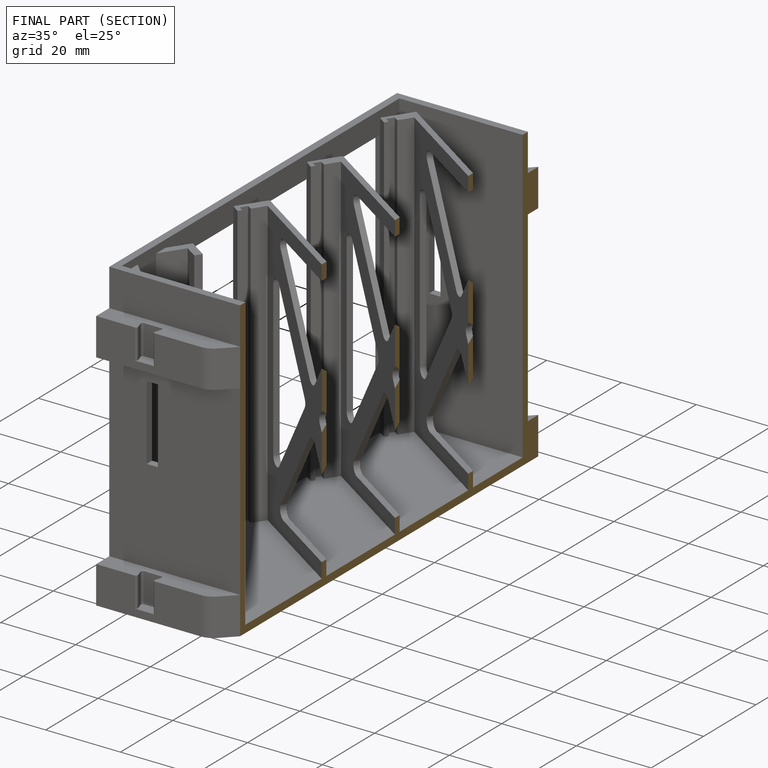
[diagram: finished part — half-section view (interior)]
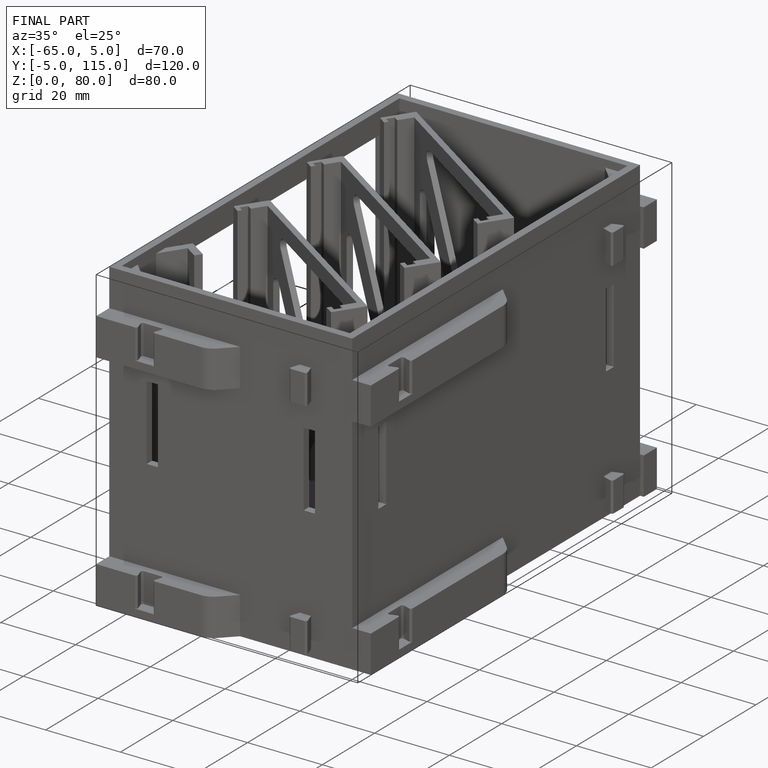
[diagram: finished part — iso view with bounding-box wireframe]
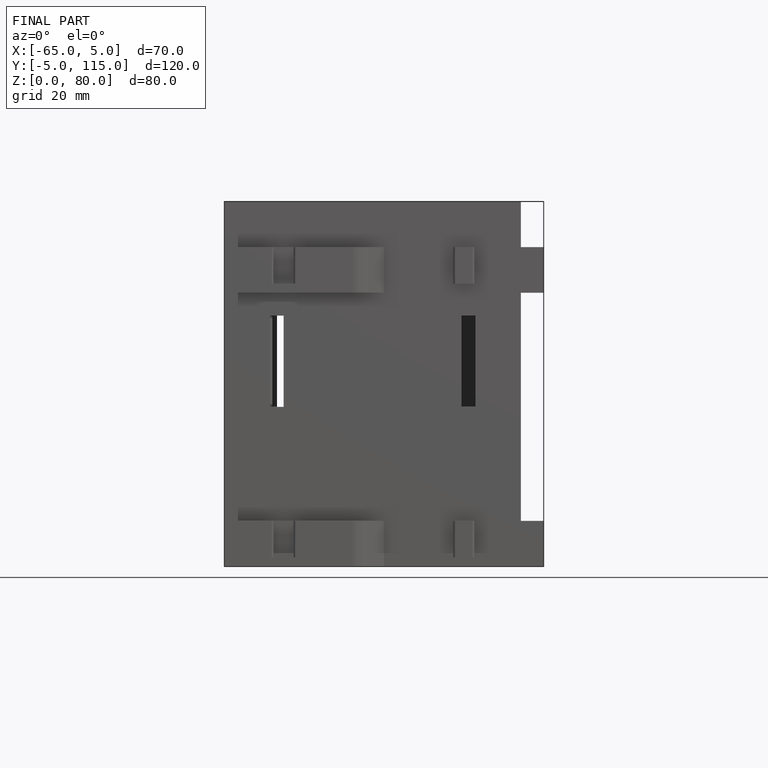
[diagram: finished part — front view with bounding-box wireframe]
